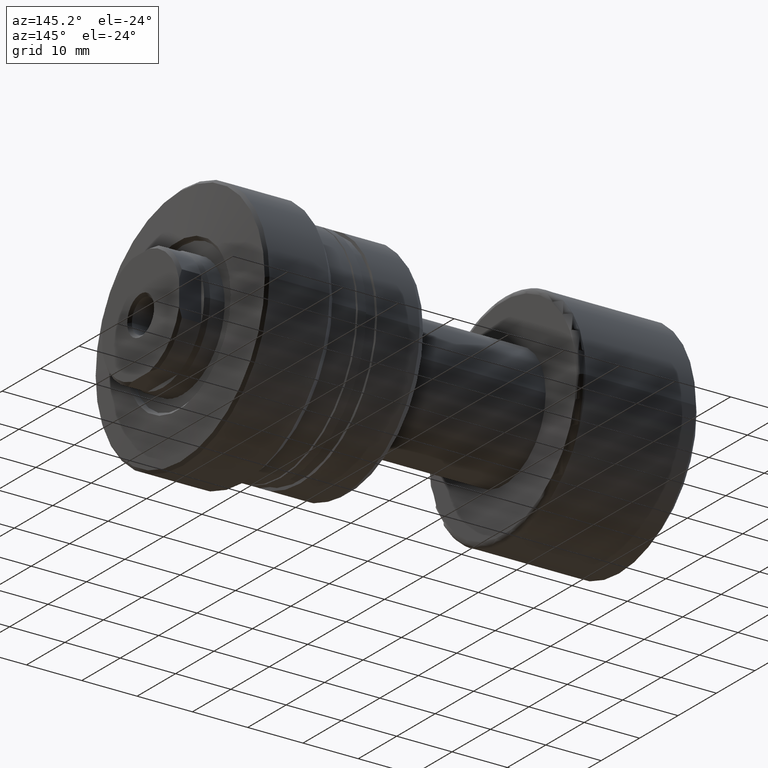
[diagram: clean part render]
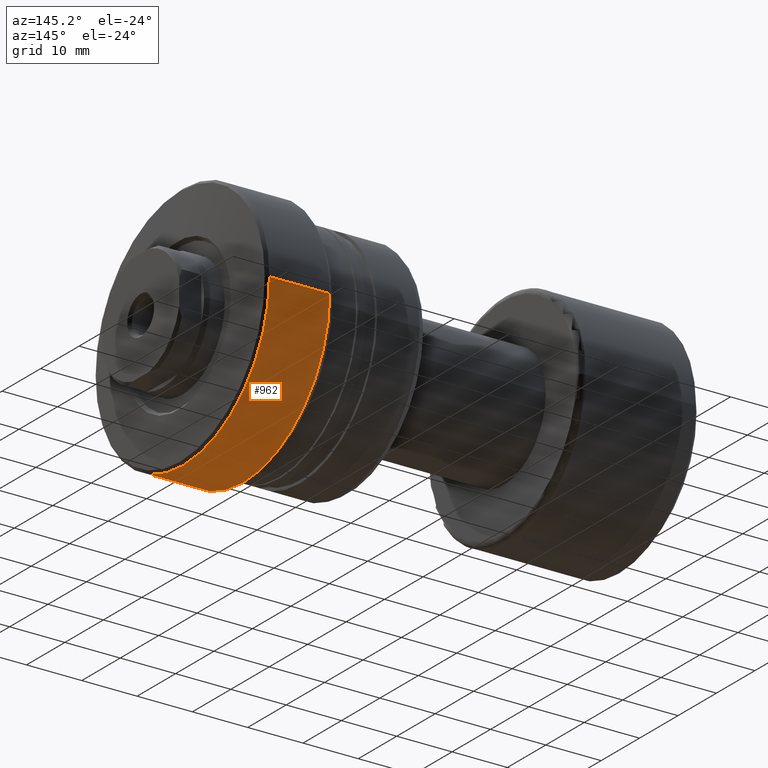
[diagram: same view with one face highlighted and labeled with its STEP entity id]
A machine part, auxiliary view. The second image highlights one B-rep face of the part: STEP entity #962.
In plain terms, the highlighted cylindrical surface (partial cylindrical patch) has radius 22.5 mm, axis along (1, 0, 0).
Its self-contained STEP definition (entity closure, byte-faithful):
#94 = CARTESIAN_POINT ( 'NONE',  ( -12.50000000000068567, -22.50000000000000355, 2.755455298081551483E-15 ) ) ;
#100 = CARTESIAN_POINT ( 'NONE',  ( -1.600000000000695755, -22.49999999999999645, 2.755455298081553850E-15 ) ) ;
#189 = FACE_OUTER_BOUND ( 'NONE', #1471, .T. ) ;
#303 = ORIENTED_EDGE ( 'NONE', *, *, #1189, .T. ) ;
#327 = VERTEX_POINT ( 'NONE', #629 ) ;
#436 = AXIS2_PLACEMENT_3D ( 'NONE', #599, #2099, #1339 ) ;
#467 = CARTESIAN_POINT ( 'NONE',  ( -12.50000000000075318, 5.404401872421122820E-14, 0.000000000000000000 ) ) ;
#485 = ORIENTED_EDGE ( 'NONE', *, *, #1840, .T. ) ;
#507 = EDGE_CURVE ( 'NONE', #702, #1311, #2029, .T. ) ;
#547 = CARTESIAN_POINT ( 'NONE',  ( -30.28002276692739159, 22.50000000000006750, 0.000000000000000000 ) ) ;
#599 = CARTESIAN_POINT ( 'NONE',  ( -1.600000000000763922, 8.717557383052277888E-14, 0.000000000000000000 ) ) ;
#629 = CARTESIAN_POINT ( 'NONE',  ( -1.600000000000832312, 22.50000000000017408, 0.000000000000000000 ) ) ;
#702 = VERTEX_POINT ( 'NONE', #94 ) ;
#836 = ORIENTED_EDGE ( 'NONE', *, *, #1593, .F. ) ;
#885 = CIRCLE ( 'NONE', #436, 22.50000000000008527 ) ;
#899 = DIRECTION ( 'NONE',  ( 1.000000000000000000, 3.039592211588219332E-15, -0.000000000000000000 ) ) ;
#903 = DIRECTION ( 'NONE',  ( 1.000000000000000000, 3.039592211588219332E-15, -0.000000000000000000 ) ) ;
#911 = DIRECTION ( 'NONE',  ( -3.083952846180981011E-15, 1.000000000000000000, 0.000000000000000000 ) ) ;
#962 = ADVANCED_FACE ( 'NONE', ( #189 ), #2329, .T. ) ;
#1124 = CARTESIAN_POINT ( 'NONE',  ( -30.28002276692725303, -22.50000000000006750, 2.755455298081553061E-15 ) ) ;
#1184 = AXIS2_PLACEMENT_3D ( 'NONE', #467, #2334, #1604 ) ;
#1189 = EDGE_CURVE ( 'NONE', #702, #2093, #2040, .T. ) ;
#1311 = VERTEX_POINT ( 'NONE', #100 ) ;
#1339 = DIRECTION ( 'NONE',  ( -3.035766082959400977E-15, 1.000000000000000000, 0.000000000000000000 ) ) ;
#1402 = ORIENTED_EDGE ( 'NONE', *, *, #507, .F. ) ;
#1471 = EDGE_LOOP ( 'NONE', ( #1402, #303, #485, #836 ) ) ;
#1476 = LINE ( 'NONE', #547, #2402 ) ;
#1593 = EDGE_CURVE ( 'NONE', #1311, #327, #885, .T. ) ;
#1604 = DIRECTION ( 'NONE',  ( -3.006854025026458399E-15, 1.000000000000000000, 0.000000000000000000 ) ) ;
#1684 = CARTESIAN_POINT ( 'NONE',  ( -30.28002276692732408, 0.000000000000000000, 0.000000000000000000 ) ) ;
#1840 = EDGE_CURVE ( 'NONE', #2093, #327, #1476, .T. ) ;
#1864 = DIRECTION ( 'NONE',  ( 1.000000000000000000, 3.039592211588219332E-15, -0.000000000000000000 ) ) ;
#1992 = VECTOR ( 'NONE', #1864, 1000.000000000000000 ) ;
#2029 = LINE ( 'NONE', #1124, #1992 ) ;
#2040 = CIRCLE ( 'NONE', #1184, 22.50000000000005329 ) ;
#2093 = VERTEX_POINT ( 'NONE', #2107 ) ;
#2099 = DIRECTION ( 'NONE',  ( 1.000000000000000000, 3.039592211588219332E-15, -0.000000000000000000 ) ) ;
#2107 = CARTESIAN_POINT ( 'NONE',  ( -12.50000000000082068, 22.50000000000010658, 0.000000000000000000 ) ) ;
#2329 = CYLINDRICAL_SURFACE ( 'NONE', #2442, 22.50000000000006750 ) ;
#2334 = DIRECTION ( 'NONE',  ( 1.000000000000000000, 3.039592211588219332E-15, -0.000000000000000000 ) ) ;
#2402 = VECTOR ( 'NONE', #899, 1000.000000000000000 ) ;
#2442 = AXIS2_PLACEMENT_3D ( 'NONE', #1684, #903, #911 ) ;